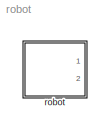
MODEL robot
KIND model
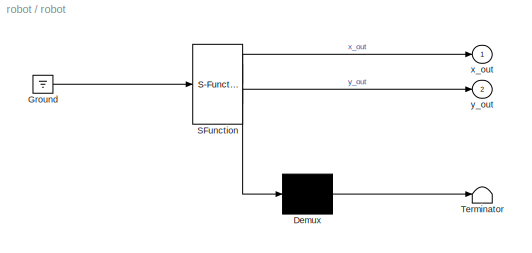
BLOCK [SubSystem] robot
  ErrorFcn = Stateflow.Translate.translate
  FunctionWithSeparateData = off
  MaskHideContents = off
  MinAlgLoopOccurrences = off
  Opaque = off
  PermitHierarchicalResolution = ExplicitOnly
  Ports = [0, 2]
  PropExecContextOutsideSubsystem = off
  RTWSystemCode = Auto
  RequestExecContextInheritance = off
  SFBlockType = Chart
  SID = 1
  TreatAsAtomicUnit = on
BLOCK [Demux] robot/ Demux 
  Outputs = 1
  Ports = [1, 1]
  SID = 1::46
BLOCK [Ground] robot/ Ground 
  SID = 1::48
BLOCK [S-Function] robot/ SFunction 
  EnableBusSupport = on
  FunctionName = sf_sfun
  PortCounts = [1 3]
  Ports = [1, 3]
  SID = 1::45
  Tag = Stateflow S-Function robot 1
BLOCK [Terminator] robot/ Terminator 
  SID = 1::47
BLOCK [Outport] robot/x_out
  IconDisplay = Port number
  SID = 1::49
BLOCK [Outport] robot/y_out
  IconDisplay = Port number
  Port = 2
  SID = 1::50
LINE robot/ Demux :1 -> robot/ Terminator :1
LINE robot/ Ground :1 -> robot/ SFunction :1
LINE robot/ SFunction :1 -> robot/ Demux :1
LINE robot/ SFunction :2 -> robot/x_out:1
LINE robot/ SFunction :3 -> robot/y_out:1
CHART robot states=2 transitions=2
  STATE_LABEL 'Move\\ndu:\\nx_dot = 5 * sin(theta);\\ny_dot = 5 * cos(theta);\\ntheta_dot  = 0.9;\\nx_out = x;\\ny_out = y;'
  STATE_LABEL 'Stop\\ndu:\\nx_dot = 0;\\ny_dot = 0;\\ntheta_dot = 0;\\nx_out = x;\\ny_out = y;'
